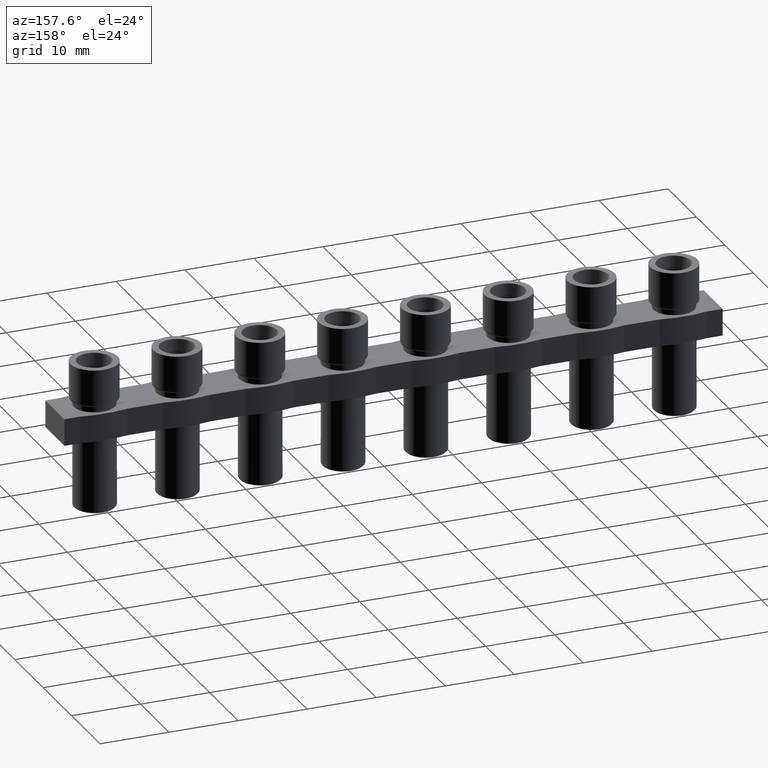
[diagram: clean part render]
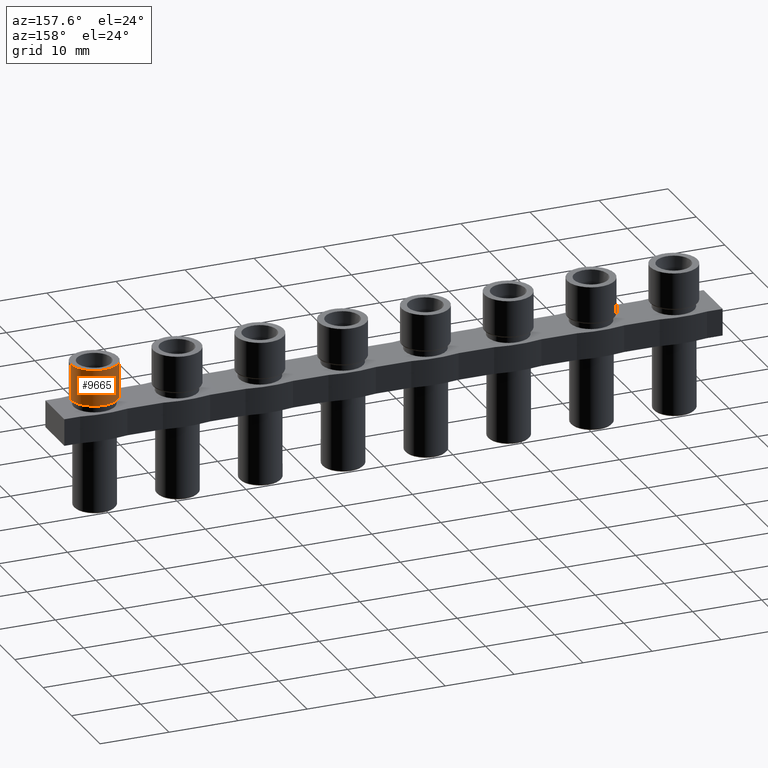
[diagram: same view with one face highlighted and labeled with its STEP entity id]
A machine part, auxiliary view. The second image highlights one B-rep face of the part: STEP entity #9665.
In plain terms, the highlighted cylindrical surface (edge-blend (fillet) strip) has radius 3.425 mm, axis along (-0, -0, -1).
Its self-contained STEP definition (entity closure, byte-faithful):
#391 = AXIS2_PLACEMENT_3D ( 'NONE', #11841, #11802, #11836 ) ;
#1263 = CARTESIAN_POINT ( 'NONE',  ( 15.42499999999999900, 1.885405029533116300E-015, 0.1999999999999996500 ) ) ;
#2569 = VERTEX_POINT ( 'NONE', #4471 ) ;
#2729 = VERTEX_POINT ( 'NONE', #4690 ) ;
#2776 = VERTEX_POINT ( 'NONE', #4657 ) ;
#3787 = EDGE_LOOP ( 'NONE', ( #5193, #5102, #5130, #5172 ) ) ;
#4471 = CARTESIAN_POINT ( 'NONE',  ( 8.575000000000001100, 1.465963500825148300E-015, 0.1999999999999996500 ) ) ;
#4657 = CARTESIAN_POINT ( 'NONE',  ( 15.42499999999999700, 1.885405029533116300E-015, 5.400000000000000400 ) ) ;
#4690 = CARTESIAN_POINT ( 'NONE',  ( 8.575000000000002800, 1.465963500825148300E-015, 5.400000000000000400 ) ) ;
#5102 = ORIENTED_EDGE ( 'NONE', *, *, #9938, .T. ) ;
#5130 = ORIENTED_EDGE ( 'NONE', *, *, #9970, .F. ) ;
#5172 = ORIENTED_EDGE ( 'NONE', *, *, #10043, .F. ) ;
#5193 = ORIENTED_EDGE ( 'NONE', *, *, #10033, .T. ) ;
#6046 = VERTEX_POINT ( 'NONE', #1263 ) ;
#7638 = LINE ( 'NONE', #7642, #11047 ) ;
#7642 = CARTESIAN_POINT ( 'NONE',  ( 15.42499999999999700, 1.885405029533116300E-015, 5.400000000000000400 ) ) ;
#7646 = DIRECTION ( 'NONE',  ( -0.0000000000000000000, -0.0000000000000000000, -1.000000000000000000 ) ) ;
#7736 = DIRECTION ( 'NONE',  ( -0.0000000000000000000, -0.0000000000000000000, -1.000000000000000000 ) ) ;
#7749 = CARTESIAN_POINT ( 'NONE',  ( 12.00000000000000000, 1.465963500825148300E-015, 0.1999999999999996500 ) ) ;
#7770 = DIRECTION ( 'NONE',  ( 1.000000000000000000, 0.0000000000000000000, 0.0000000000000000000 ) ) ;
#9665 = ADVANCED_FACE ( 'NONE', ( #11819 ), #11830, .T. ) ;
#9938 = EDGE_CURVE ( 'NONE', #2776, #6046, #7638, .T. ) ;
#9970 = EDGE_CURVE ( 'NONE', #2569, #6046, #10991, .T. ) ;
#10033 = EDGE_CURVE ( 'NONE', #2729, #2776, #10648, .T. ) ;
#10043 = EDGE_CURVE ( 'NONE', #2729, #2569, #10171, .T. ) ;
#10134 = DIRECTION ( 'NONE',  ( -1.000000000000000000, 0.0000000000000000000, 0.0000000000000000000 ) ) ;
#10140 = DIRECTION ( 'NONE',  ( -0.0000000000000000000, -0.0000000000000000000, -1.000000000000000000 ) ) ;
#10142 = CARTESIAN_POINT ( 'NONE',  ( 12.00000000000000000, 1.465963500825148300E-015, 5.400000000000000400 ) ) ;
#10171 = LINE ( 'NONE', #10201, #10639 ) ;
#10201 = CARTESIAN_POINT ( 'NONE',  ( 8.575000000000002800, 1.465963500825148300E-015, 5.400000000000000400 ) ) ;
#10203 = DIRECTION ( 'NONE',  ( -0.0000000000000000000, -0.0000000000000000000, -1.000000000000000000 ) ) ;
#10618 = AXIS2_PLACEMENT_3D ( 'NONE', #10142, #10140, #10134 ) ;
#10639 = VECTOR ( 'NONE', #10203, 1000.000000000000000 ) ;
#10648 = CIRCLE ( 'NONE', #10618, 3.424999999999997600 ) ;
#10991 = CIRCLE ( 'NONE', #11043, 3.424999999999999400 ) ;
#11043 = AXIS2_PLACEMENT_3D ( 'NONE', #7749, #7736, #7770 ) ;
#11047 = VECTOR ( 'NONE', #7646, 1000.000000000000000 ) ;
#11802 = DIRECTION ( 'NONE',  ( -0.0000000000000000000, -0.0000000000000000000, -1.000000000000000000 ) ) ;
#11819 = FACE_OUTER_BOUND ( 'NONE', #3787, .T. ) ;
#11830 = CYLINDRICAL_SURFACE ( 'NONE', #391, 3.424999999999997600 ) ;
#11836 = DIRECTION ( 'NONE',  ( -1.000000000000000000, 0.0000000000000000000, 0.0000000000000000000 ) ) ;
#11841 = CARTESIAN_POINT ( 'NONE',  ( 12.00000000000000000, 1.465963500825148300E-015, 5.400000000000000400 ) ) ;